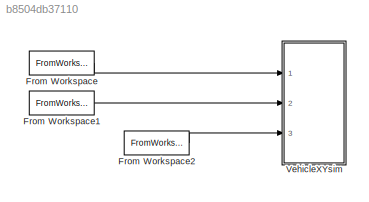
MODEL slx_b8504db37110
KIND model
CONFIG AbsTol = auto
CONFIG EnableMultiTasking = off
CONFIG FixedStep = 0.1
CONFIG MaxStep = auto
CONFIG MinStep = auto
CONFIG RelTol = 1e-3
CONFIG SampleTimeConstraint = Unconstrained
CONFIG Solver = FixedStepAuto
CONFIG SolverName = FixedStepAuto
CONFIG StartTime = 0.0
CONFIG StopTime = end_time
BLOCK [FromWorkspace] From Workspace
  SampleTime = 0
  VariableName = vehicleXvalues
  ZeroCross = on
BLOCK [FromWorkspace] From Workspace1
  SampleTime = 0
  VariableName = vehicleYvalues
  ZeroCross = on
BLOCK [FromWorkspace] From Workspace2
  SampleTime = 0
  VariableName = vehicleAvalues
  ZeroCross = on
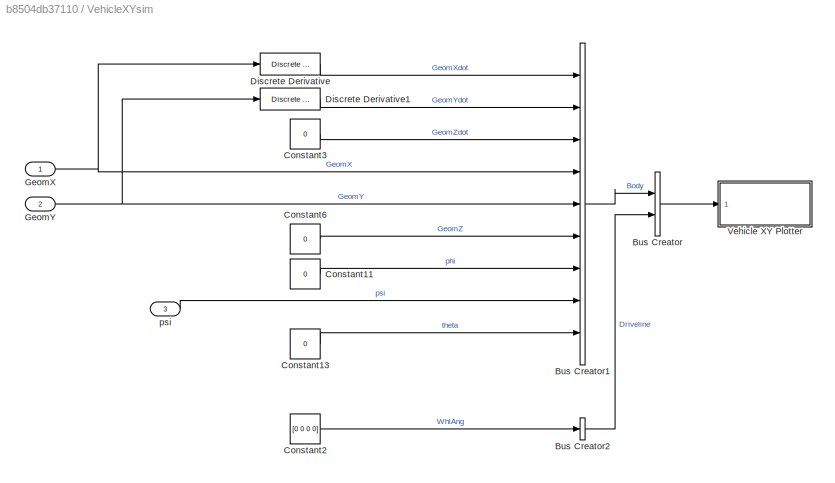
BLOCK [SubSystem] VehicleXYsim
  Ports = [3]
  RequestExecContextInheritance = off
BLOCK [BusCreator] VehicleXYsim/Bus Creator
  DisplayOption = bar
  InheritFromInputs = on
  Inputs = 2
  Ports = [2, 1]
BLOCK [BusCreator] VehicleXYsim/Bus Creator1
  DisplayOption = bar
  InheritFromInputs = on
  Inputs = 9
  Ports = [9, 1]
BLOCK [BusCreator] VehicleXYsim/Bus Creator2
  DisplayOption = bar
  InheritFromInputs = on
  Inputs = 1
  Ports = [1, 1]
BLOCK [Constant] VehicleXYsim/Constant11
  Value = 0
BLOCK [Constant] VehicleXYsim/Constant13
  Value = 0
BLOCK [Constant] VehicleXYsim/Constant2
  Value = [0 0 0 0]
BLOCK [Constant] VehicleXYsim/Constant3
  Value = 0
BLOCK [Constant] VehicleXYsim/Constant6
  Value = 0
BLOCK [Reference] VehicleXYsim/Discrete Derivative  REF=simulink/Discrete/Discrete Derivative
  Ports = [1, 1]
  SourceBlock = simulink/Discrete/Discrete Derivative
  SourceProductBaseCode = SL
  SourceProductName = Simulink
  SourceType = Discrete Derivative
BLOCK [Reference] VehicleXYsim/Discrete Derivative1  REF=simulink/Discrete/Discrete Derivative
  Ports = [1, 1]
  SourceBlock = simulink/Discrete/Discrete Derivative
  SourceProductBaseCode = SL
  SourceProductName = Simulink
  SourceType = Discrete Derivative
BLOCK [Inport] VehicleXYsim/GeomX
  IconDisplay = Port number
BLOCK [Inport] VehicleXYsim/GeomY
  IconDisplay = Port number
  Port = 2
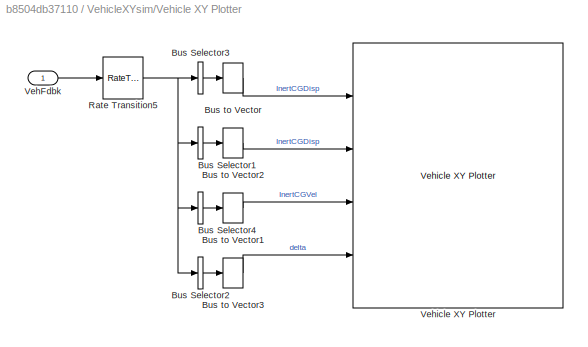
BLOCK [SubSystem] VehicleXYsim/Vehicle XY Plotter
  Ports = [1]
  RequestExecContextInheritance = off
BLOCK [BusSelector] VehicleXYsim/Vehicle XY Plotter/Bus Selector1
  OutputAsBus = on
  OutputSignals = Body.phi,Body.theta,Body.psi
  Ports = [1, 1]
BLOCK [BusSelector] VehicleXYsim/Vehicle XY Plotter/Bus Selector2
  OutputAsBus = on
  OutputSignals = Driveline.WhlAng
  Ports = [1, 1]
BLOCK [BusSelector] VehicleXYsim/Vehicle XY Plotter/Bus Selector3
  OutputAsBus = on
  OutputSignals = Body.GeomX,Body.GeomY,Body.GeomZ
  Ports = [1, 1]
BLOCK [BusSelector] VehicleXYsim/Vehicle XY Plotter/Bus Selector4
  OutputAsBus = on
  OutputSignals = Body.GeomXdot,Body.GeomYdot,Body.GeomZdot
  Ports = [1, 1]
BLOCK [BusToVector] VehicleXYsim/Vehicle XY Plotter/Bus to Vector
BLOCK [BusToVector] VehicleXYsim/Vehicle XY Plotter/Bus to Vector1
BLOCK [BusToVector] VehicleXYsim/Vehicle XY Plotter/Bus to Vector2
BLOCK [BusToVector] VehicleXYsim/Vehicle XY Plotter/Bus to Vector3
BLOCK [RateTransition] VehicleXYsim/Vehicle XY Plotter/Rate Transition5
  Deterministic = off
  OutPortSampleTime = pltDT
BLOCK [Inport] VehicleXYsim/Vehicle XY Plotter/VehFdbk
  IconDisplay = Port number
BLOCK [Reference] VehicleXYsim/Vehicle XY Plotter/Vehicle XY Plotter  REF=vehdynlibviscommon/Vehicle XY Plotter
  Ports = [4]
  SourceBlock = vehdynlibviscommon/Vehicle XY Plotter
  SourceType = Vehicle XY Plotter
BLOCK [Inport] VehicleXYsim/psi
  IconDisplay = Port number
  Port = 3
LINE From Workspace1:1 -> VehicleXYsim:2
LINE From Workspace2:1 -> VehicleXYsim:3
LINE From Workspace:1 -> VehicleXYsim:1
LINE VehicleXYsim/Bus Creator1:1 -> VehicleXYsim/Bus Creator:1
LINE VehicleXYsim/Bus Creator2:1 -> VehicleXYsim/Bus Creator:2
LINE VehicleXYsim/Bus Creator:1 -> VehicleXYsim/Vehicle XY Plotter:1
LINE VehicleXYsim/Constant11:1 -> VehicleXYsim/Bus Creator1:7
LINE VehicleXYsim/Constant13:1 -> VehicleXYsim/Bus Creator1:9
LINE VehicleXYsim/Constant2:1 -> VehicleXYsim/Bus Creator2:1
LINE VehicleXYsim/Constant3:1 -> VehicleXYsim/Bus Creator1:3
LINE VehicleXYsim/Constant6:1 -> VehicleXYsim/Bus Creator1:6
LINE VehicleXYsim/Discrete Derivative1:1 -> VehicleXYsim/Bus Creator1:2
LINE VehicleXYsim/Discrete Derivative:1 -> VehicleXYsim/Bus Creator1:1
NET VehicleXYsim/GeomX:1 -> VehicleXYsim/Bus Creator1:4, VehicleXYsim/Discrete Derivative:1
NET VehicleXYsim/GeomY:1 -> VehicleXYsim/Bus Creator1:5, VehicleXYsim/Discrete Derivative1:1
LINE VehicleXYsim/Vehicle XY Plotter/Bus Selector1:1 -> VehicleXYsim/Vehicle XY Plotter/Bus to Vector2:1
LINE VehicleXYsim/Vehicle XY Plotter/Bus Selector2:1 -> VehicleXYsim/Vehicle XY Plotter/Bus to Vector3:1
LINE VehicleXYsim/Vehicle XY Plotter/Bus Selector3:1 -> VehicleXYsim/Vehicle XY Plotter/Bus to Vector:1
LINE VehicleXYsim/Vehicle XY Plotter/Bus Selector4:1 -> VehicleXYsim/Vehicle XY Plotter/Bus to Vector1:1
LINE VehicleXYsim/Vehicle XY Plotter/Bus to Vector1:1 -> VehicleXYsim/Vehicle XY Plotter/Vehicle XY Plotter:3
LINE VehicleXYsim/Vehicle XY Plotter/Bus to Vector2:1 -> VehicleXYsim/Vehicle XY Plotter/Vehicle XY Plotter:2
LINE VehicleXYsim/Vehicle XY Plotter/Bus to Vector3:1 -> VehicleXYsim/Vehicle XY Plotter/Vehicle XY Plotter:4
LINE VehicleXYsim/Vehicle XY Plotter/Bus to Vector:1 -> VehicleXYsim/Vehicle XY Plotter/Vehicle XY Plotter:1
NET VehicleXYsim/Vehicle XY Plotter/Rate Transition5:1 -> VehicleXYsim/Vehicle XY Plotter/Bus Selector1:1, VehicleXYsim/Vehicle XY Plotter/Bus Selector2:1, VehicleXYsim/Vehicle XY Plotter/Bus Selector3:1, VehicleXYsim/Vehicle XY Plotter/Bus Selector4:1
LINE VehicleXYsim/Vehicle XY Plotter/VehFdbk:1 -> VehicleXYsim/Vehicle XY Plotter/Rate Transition5:1
LINE VehicleXYsim/psi:1 -> VehicleXYsim/Bus Creator1:8
note: NET lines group one-source signal fan-out (src -> all destinations, sorted); 1:1 wires keep LINE
